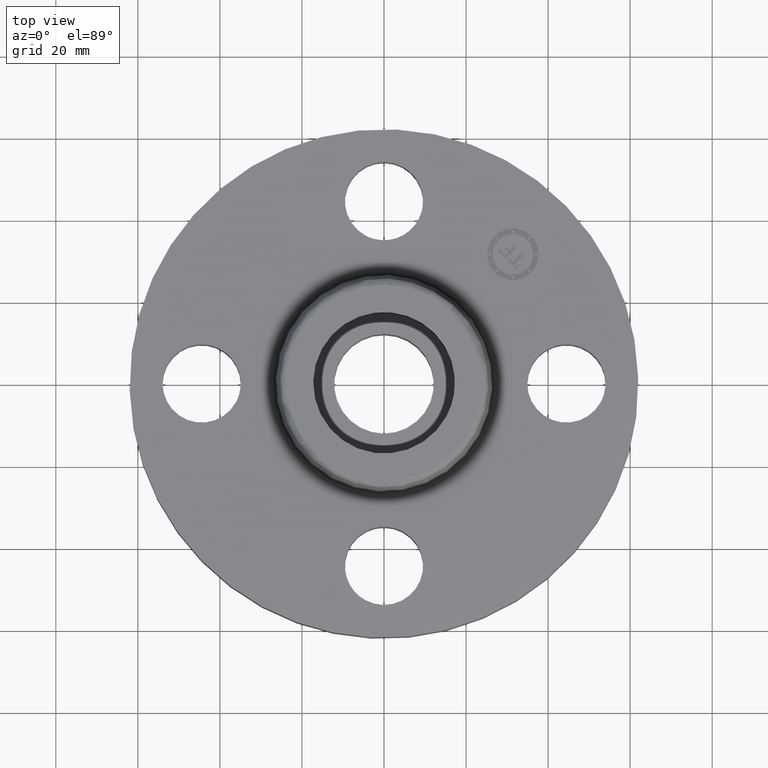
[diagram: clean part render]
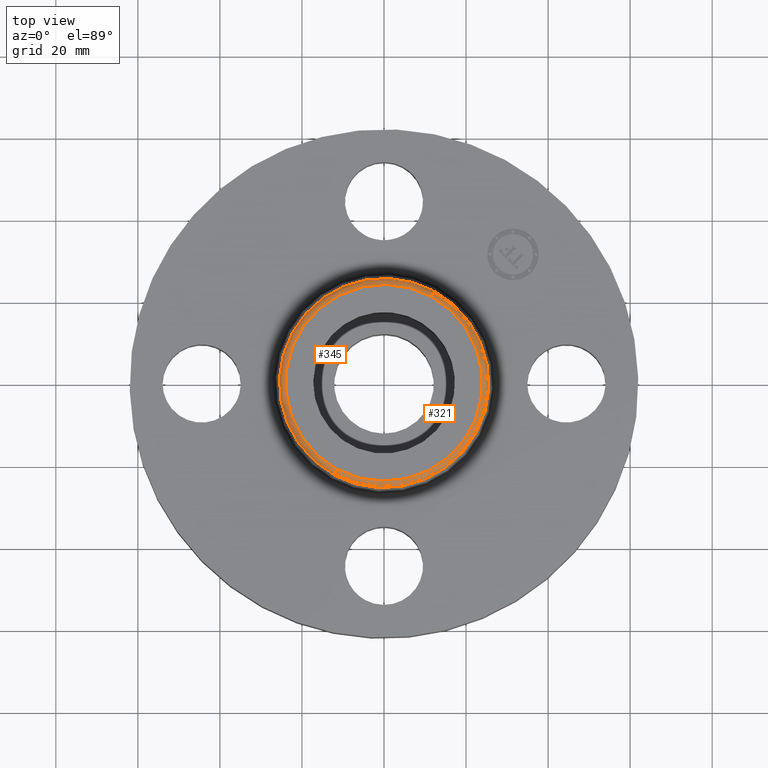
[diagram: same view with one multi-face feature highlighted, each face labeled with its STEP entity id]
A machine part, top view. The highlighted faces form ONE feature: a constant-radius fillet chain: 2 tangent blend faces with common blend radius 1.524 mm. The faces share edges in the B-rep.
Their STEP definitions:
[1] entity #321 (Torus):
#228=AXIS2_PLACEMENT_3D('Circle Axis2P3D',#226,#227,$) ;
#294=AXIS2_PLACEMENT_3D('Torus Axis2P3D',#291,#292,#293) ;
#298=AXIS2_PLACEMENT_3D('Circle Axis2P3D',#296,#297,$) ;
#307=AXIS2_PLACEMENT_3D('Circle Axis2P3D',#305,#306,$) ;
#312=AXIS2_PLACEMENT_3D('Circle Axis2P3D',#310,#311,$) ;
#226=CARTESIAN_POINT('Axis2P3D Location',(4.36653687836E-011,-3.61680239564E-011,1.06)) ;
#230=CARTESIAN_POINT('Vertex',(0.452775730018,0.828800414486,1.06)) ;
#232=CARTESIAN_POINT('Vertex',(-0.452775730017,-0.828800414486,1.06)) ;
#291=CARTESIAN_POINT('Axis2P3D Location',(0.,0.,1.)) ;
#296=CARTESIAN_POINT('Axis2P3D Location',(0.,0.,1.01041889066)) ;
#300=CARTESIAN_POINT('Vertex',(0.481104249261,0.880655421136,1.01041889066)) ;
#302=CARTESIAN_POINT('Vertex',(-0.481104249261,-0.880655421136,1.01041889066)) ;
#305=CARTESIAN_POINT('Axis2P3D Location',(0.452775730018,0.828800414486,1.)) ;
#310=CARTESIAN_POINT('Axis2P3D Location',(-0.452775730018,-0.828800414486,1.)) ;
#227=DIRECTION('Axis2P3D Direction',(0.,0.,-0.0393700787402)) ;
#292=DIRECTION('Axis2P3D Direction',(0.,0.,-0.0393700787402)) ;
#293=DIRECTION('Axis2P3D XDirection',(0.0188750212049,0.0345504945626,0.)) ;
#297=DIRECTION('Axis2P3D Direction',(-0.,0.,-0.0393700787402)) ;
#306=DIRECTION('Axis2P3D Direction',(-0.0345504945626,0.0188750212049,0.)) ;
#311=DIRECTION('Axis2P3D Direction',(0.0345504945626,-0.0188750212049,0.)) ;
#316=ORIENTED_EDGE('',*,*,#304,.F.) ;
#317=ORIENTED_EDGE('',*,*,#309,.T.) ;
#318=ORIENTED_EDGE('',*,*,#234,.T.) ;
#319=ORIENTED_EDGE('',*,*,#314,.F.) ;
#321=ADVANCED_FACE('PartBody',(#320),#295,.T.) ;
#229=CIRCLE('generated circle',#228,0.944413039259) ;
#299=CIRCLE('generated circle',#298,1.00350150445) ;
#308=CIRCLE('generated circle',#307,0.0600000000002) ;
#313=CIRCLE('generated circle',#312,0.0600000000002) ;
#295=TOROIDAL_SURFACE('homeo Torus',#294,0.944413039271,0.0600000000002) ;
#234=EDGE_CURVE('',#231,#233,#229,.T.) ;
#304=EDGE_CURVE('',#301,#303,#299,.T.) ;
#309=EDGE_CURVE('',#301,#231,#308,.F.) ;
#314=EDGE_CURVE('',#303,#233,#313,.F.) ;
#315=EDGE_LOOP('',(#316,#317,#318,#319)) ;
#320=FACE_OUTER_BOUND('',#315,.T.) ;
#231=VERTEX_POINT('',#230) ;
#233=VERTEX_POINT('',#232) ;
#301=VERTEX_POINT('',#300) ;
#303=VERTEX_POINT('',#302) ;
[2] entity #345 (Torus):
#237=AXIS2_PLACEMENT_3D('Circle Axis2P3D',#235,#236,$) ;
#307=AXIS2_PLACEMENT_3D('Circle Axis2P3D',#305,#306,$) ;
#312=AXIS2_PLACEMENT_3D('Circle Axis2P3D',#310,#311,$) ;
#332=AXIS2_PLACEMENT_3D('Torus Axis2P3D',#329,#330,#331) ;
#336=AXIS2_PLACEMENT_3D('Circle Axis2P3D',#334,#335,$) ;
#230=CARTESIAN_POINT('Vertex',(0.452775730018,0.828800414486,1.06)) ;
#232=CARTESIAN_POINT('Vertex',(-0.452775730017,-0.828800414486,1.06)) ;
#235=CARTESIAN_POINT('Axis2P3D Location',(-4.36653687836E-011,1.15410043726E-011,1.06)) ;
#300=CARTESIAN_POINT('Vertex',(0.481104249261,0.880655421136,1.01041889066)) ;
#302=CARTESIAN_POINT('Vertex',(-0.481104249261,-0.880655421136,1.01041889066)) ;
#305=CARTESIAN_POINT('Axis2P3D Location',(0.452775730018,0.828800414486,1.)) ;
#310=CARTESIAN_POINT('Axis2P3D Location',(-0.452775730018,-0.828800414486,1.)) ;
#329=CARTESIAN_POINT('Axis2P3D Location',(0.,0.,1.)) ;
#334=CARTESIAN_POINT('Axis2P3D Location',(0.,0.,1.01041889066)) ;
#236=DIRECTION('Axis2P3D Direction',(0.,0.,-0.0393700787402)) ;
#306=DIRECTION('Axis2P3D Direction',(-0.0345504945626,0.0188750212049,0.)) ;
#311=DIRECTION('Axis2P3D Direction',(0.0345504945626,-0.0188750212049,0.)) ;
#330=DIRECTION('Axis2P3D Direction',(0.,0.,-0.0393700787402)) ;
#331=DIRECTION('Axis2P3D XDirection',(-0.0188750212049,-0.0345504945626,0.)) ;
#335=DIRECTION('Axis2P3D Direction',(-0.,0.,-0.0393700787402)) ;
#340=ORIENTED_EDGE('',*,*,#338,.F.) ;
#341=ORIENTED_EDGE('',*,*,#314,.T.) ;
#342=ORIENTED_EDGE('',*,*,#239,.T.) ;
#343=ORIENTED_EDGE('',*,*,#309,.F.) ;
#345=ADVANCED_FACE('PartBody',(#344),#333,.T.) ;
#238=CIRCLE('generated circle',#237,0.944413039259) ;
#308=CIRCLE('generated circle',#307,0.0600000000002) ;
#313=CIRCLE('generated circle',#312,0.0600000000002) ;
#337=CIRCLE('generated circle',#336,1.00350150445) ;
#333=TOROIDAL_SURFACE('homeo Torus',#332,0.944413039271,0.0600000000002) ;
#239=EDGE_CURVE('',#233,#231,#238,.T.) ;
#309=EDGE_CURVE('',#301,#231,#308,.F.) ;
#314=EDGE_CURVE('',#303,#233,#313,.F.) ;
#338=EDGE_CURVE('',#303,#301,#337,.T.) ;
#339=EDGE_LOOP('',(#340,#341,#342,#343)) ;
#344=FACE_OUTER_BOUND('',#339,.T.) ;
#231=VERTEX_POINT('',#230) ;
#233=VERTEX_POINT('',#232) ;
#301=VERTEX_POINT('',#300) ;
#303=VERTEX_POINT('',#302) ;